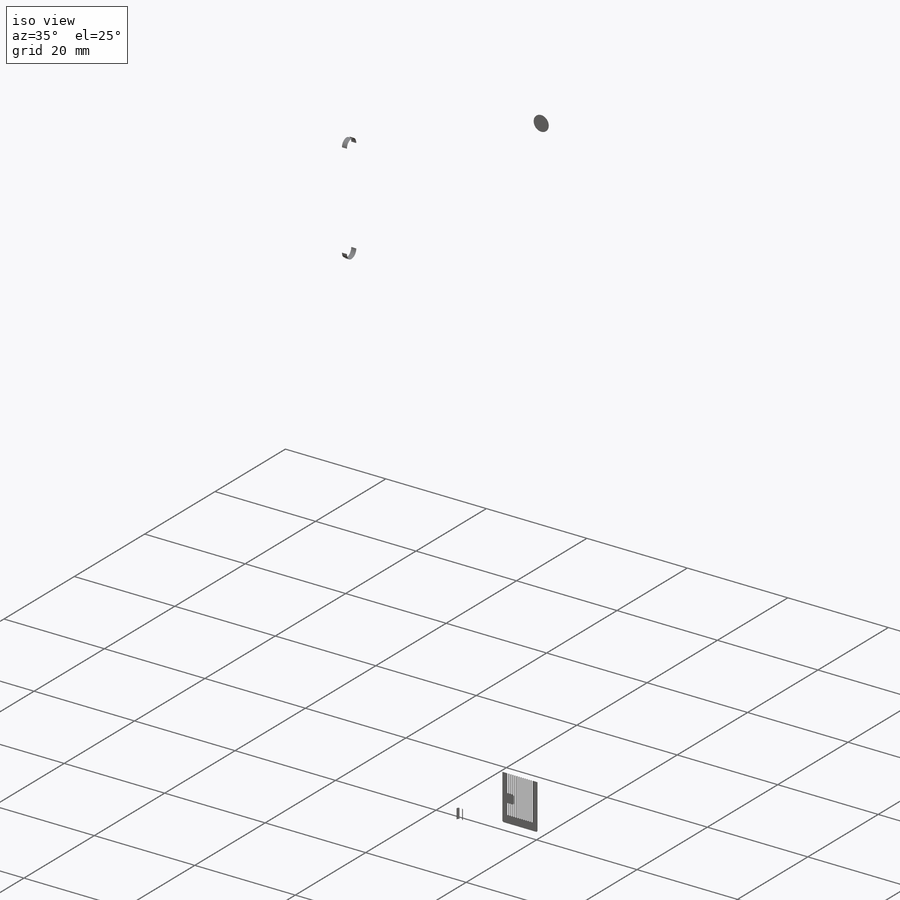
[diagram: iso view]
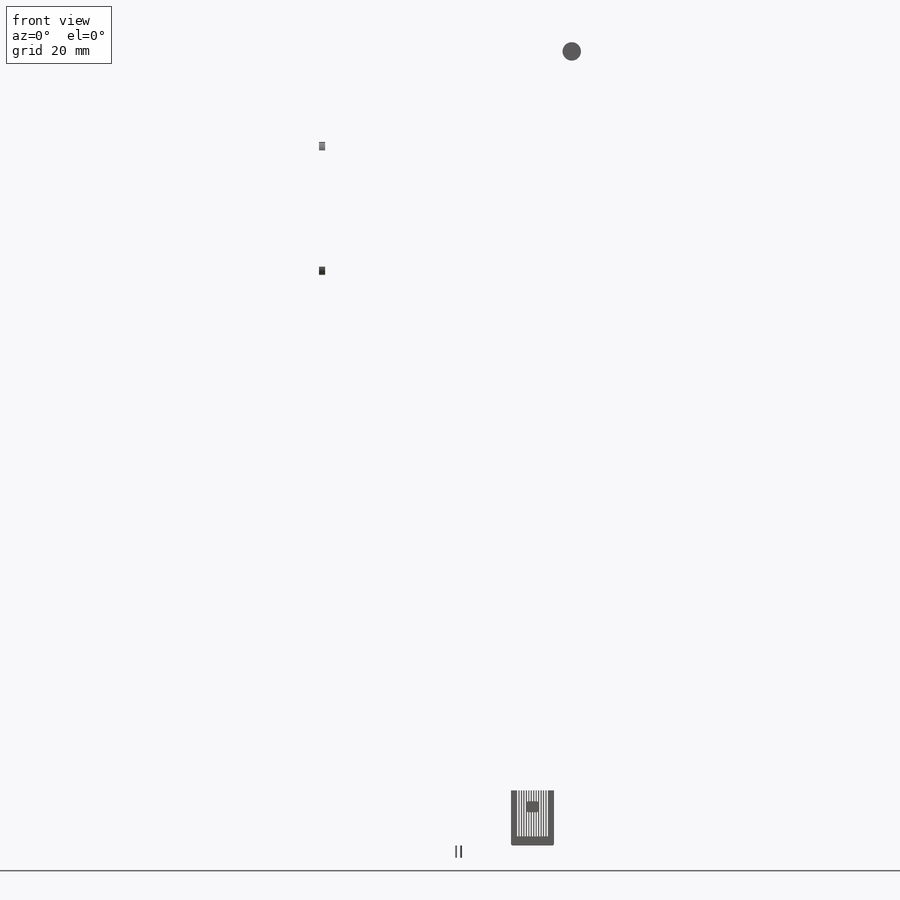
[diagram: front view]
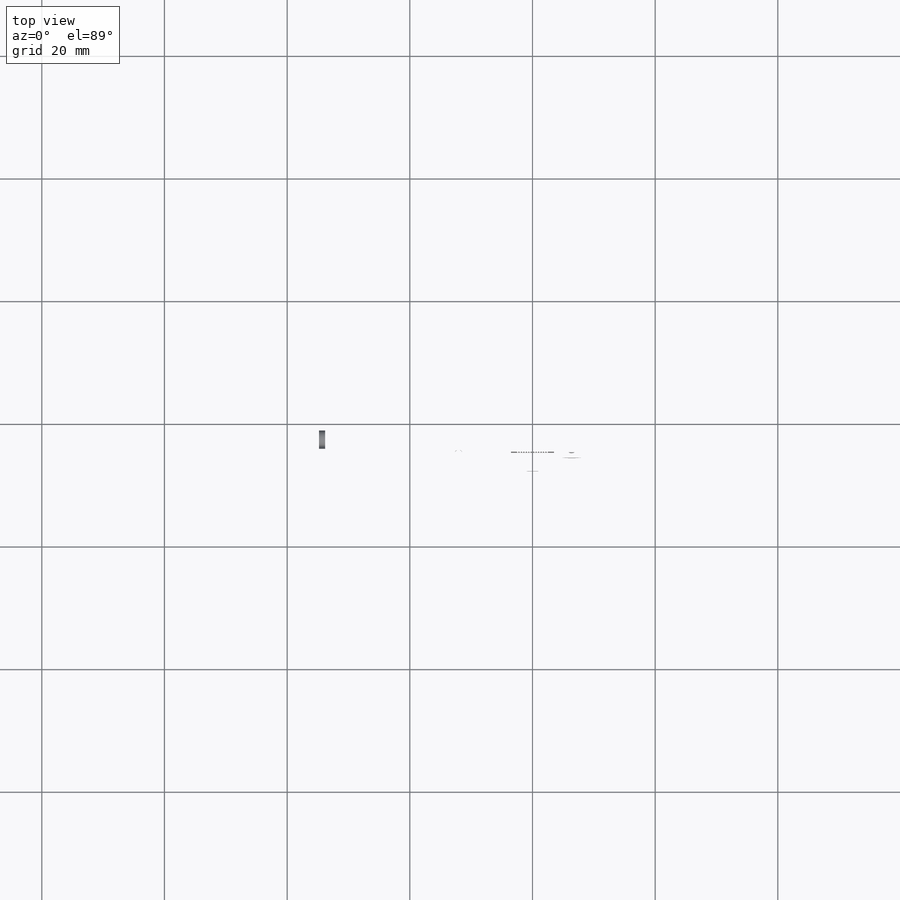
[diagram: top view]
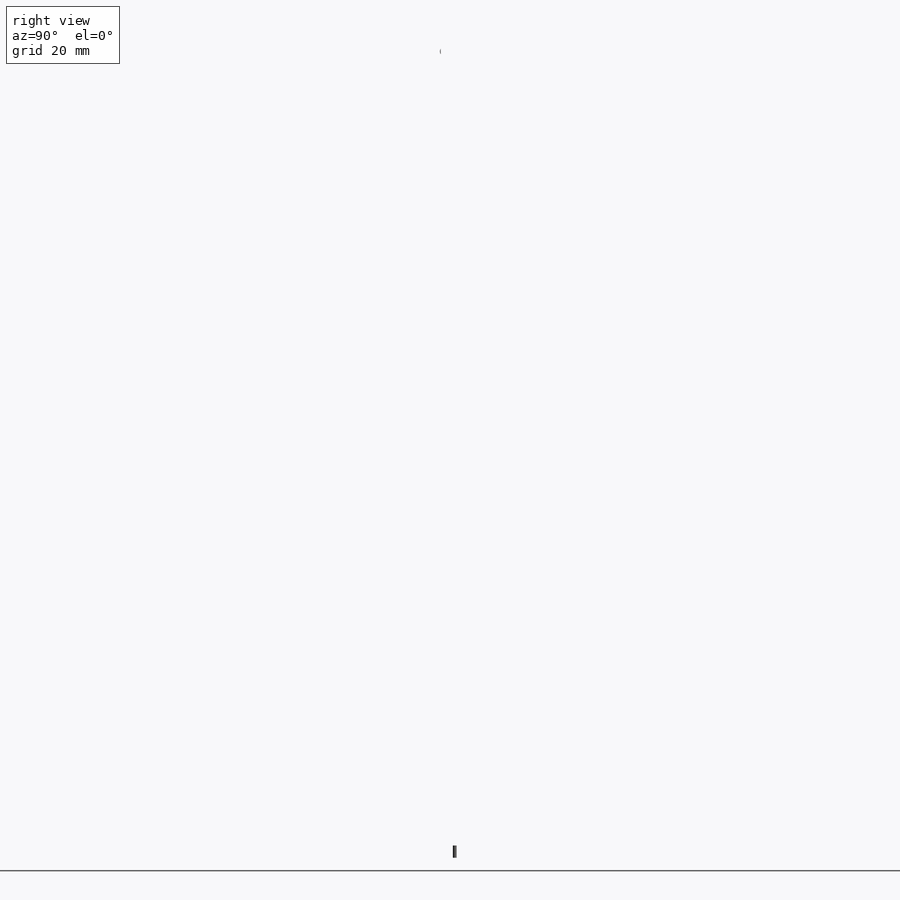
[diagram: right view]
SOLIDWORKS PART (.sldprt)
format: sldprt  version: not decoded by parser v0  size: 13,095,424 bytes
history: native  units: mm
features: sketch x36, fillet x25, cut_extrude x17, extrude x13, chamfer x6, plane x3, dome x2, material x1 (+9 scaffold rows collapsed)
feature tree (112):
  scaffold x9  (default folders/planes/origin — collapsed)
  material  "Материал <не указан>"
  plane  "Спереди"
  plane  "Сверху"
  plane  "Справа"
  sketch  "Эскиз1"  dims[D1=69.6mm D2=138.1mm]
  extrude  "Бобышка-Вытянуть1"  Depth=7.6mm
  fillet  "Скругление1"  Radius=6.5mm
  sketch  "Эскиз3"  dims[D3=6.4mm D1=0.8mm D2=0.8mm]
  cut_extrude  "Вырез-Вытянуть1"  Depth=1mm
  fillet  "Скругление2"  [1 undecoded]
  sketch  "Эскиз4"  dims[c1.D3=10.0mm c1.D1=0.01mm c1.D2=0.01mm c2.D3=~0.038331mm]
  extrude  "Бобышка-Вытянуть2"  Depth=1.2mm
  sketch  "Эскиз5"  dims[D3=10.0mm D1=0.6mm D2=0.6mm]
  cut_extrude  "Вырез-Вытянуть2"  Depth=1mm
  fillet  "Скругление3"  Radius=0.2mm
  sketch  "Эскиз6"  dims[D3=10.0mm D1=0.01mm D2=0.01mm]
  extrude  "Бобышка-Вытянуть3"  Depth=1mm
  chamfer  "Фаска1"  Distance=5.5mm
  fillet  "Скругление13"  Radius=35mm
  fillet  "Скругление14"  Radius=0.3mm
  sketch  "Эскиз9"  dims[D1=4.0mm D2=3.35mm]
  cut_extrude  "Вырез-Вытянуть3"  Depth=11.8mm
  sketch  "Эскиз10"  dims[D1=2.0mm D2=11.1mm D3=2.685mm]
  cut_extrude  "Вырез-Вытянуть4"  Depth=0.5mm
  sketch  "Эскиз11"  dims[D1=0.01mm]
  extrude  "Бобышка-Вытянуть4"  Depth=0.5mm
  fillet  "Скругление15"  Radius=0.02mm
  sketch  "Эскиз12"  dims[c1.D1=~5.498541mm c1.D2=7.0mm c2.D1=15.2mm c2.D3=6.9mm]
  cut_extrude  "Вырез-Вытянуть5"  Depth=1.5mm
  sketch  "Эскиз13"  dims[D1=0.01mm]
  extrude  "Бобышка-Вытянуть5"  Depth=1.5mm
  fillet  "Скругление17"  Radius=0.05mm
  fillet  "Скругление18"  Radius=0.06mm
  sketch  "Эскиз15"  dims[c1.D1=0.58mm c1.D2=11.4mm c1.D3=20.925mm c1.D7=27.75mm c1.D8=24.2mm c1.D9=1.5mm c2.D2=17.595mm c2.D3=17.595mm]
  cut_extrude  "Вырез-Вытянуть7"  Depth=0.2mm
  sketch  "Эскиз21"  dims[c1.D1=0.58mm c1.D4=0.58mm c1.D5=0.2995mm c2.D1=1.69mm c2.D2=2.6mm c2.D3=0.6mm c2.D4=0.095mm c2.D5=0.09mm]
  extrude  "Бобышка-Вытянуть9"  Depth=0.3mm
  fillet  "Скругление22"  Radius=0.02mm
  fillet  "Скругление23"  Radius=0.2mm
  sketch  "Эскиз22"  dims[D1=7.4mm D2=1.5mm D3=4.4mm D4=29.62mm D5=29.62mm]
  cut_extrude  "Вырез-Вытянуть8"  Depth=0.5mm
  fillet  "Скругление24"  [1 undecoded]
  fillet  "Скругление25"  [1 undecoded]
  chamfer  "Фаска2"  Distance=0.1mm Angle=45deg
  sketch  "Эскиз14"  dims[D1=0.4mm]
  cut_extrude  "Вырез-Вытянуть6"  Depth=0.2mm
  sketch  "Эскиз23"  dims[D5=0.49mm D1=1.0mm D2=2.5mm D3=0.3mm D4=0.3mm]
  sketch  "Эскиз25"  dims[c1.D4=6.18mm c1.D1=2.8mm c1.D2=6.0mm c1.D3=6.0mm c2.D1=6.0mm c2.D2=2.8mm c2.D3=3.9mm c2.D4=5.3mm c2.D5=0.01mm]
  cut_extrude  "Вырез-Вытянуть12"  Depth=0.7mm
  sketch  "Эскиз26"  dims[D1=13.0mm D2=14.0mm D3=1.9mm D4=1.9mm]
  sketch  "Эскиз27"  dims[c1.D7=0.9mm c1.D8=0.2mm c1.D5=0.9mm c1.D6=0.2mm c1.D1=2.2mm c1.D2=5.4mm c1.D3=3.2mm c1.D4=1.0mm c2.D5=0.4mm c2.D1=1.0mm c2.D6=1.0mm c2.D7=1.0mm c2.D9=0.4mm c2.D10=0.4mm c2.D11=0.4mm c2.D2=1.2mm c2.D3=0.4mm c2.D4=4.0mm c3.D7=0.4mm c3.D8=1.0mm]
  fillet  "Скругление29"  Radius=1.4mm
  fillet  "Скругление30"  Radius=0.02mm
  sketch  "Эскиз28"  dims[c1.D10=1.4mm c1.D11=0.2mm c1.D15=0.1mm c1.D1=8.0mm c1.D2=5.0mm c1.D3=29.0mm c1.D4=30.8mm c1.D5=1.2mm c1.D6=1.2mm c1.D7=5.8mm c1.D8=1.2mm c1.D9=3.8mm c1.D12=1.2mm c1.D13=1.1mm c1.D14=2.7mm c2.D15=1.2mm]
  sketch  "Эскиз29"  dims[D1=22.5mm D2=22.0mm D3=2.0mm D4=2.0mm D5=9.0mm D6=6.0mm]
  extrude  "Бобышка-Вытянуть10"  Depth=0.8mm
  fillet  "Скругление31"  [1 undecoded]
  fillet  "Скругление32"  [1 undecoded]
  fillet  "Скругление33"  [1 undecoded]
  fillet  "Скругление34"  [1 undecoded]
  fillet  "Скругление35"  Radius=0.1mm
  sketch  "Эскиз30"  dims[c1.D3=0.195mm c1.D21=0.1745mm c1.D22=0.1745mm c1.D23=0.35mm c1.D24=0.05mm c1.D15=0.205mm c1.D25=0.205mm c1.D26=0.05mm c1.D1=2.0mm c1.D2=1.8mm c2.D3=6.0mm c2.D4=13.0mm c2.D5=2.0mm c2.D6=13.0mm c2.D7=36.77mm c2.D8=2.0mm c2.D9=17.385mm c2.D10=17.385mm c2.D11=0.35mm c2.D12=0.35mm c2.D13=0.35mm c2.D14=0.4mm c3.D4=0.35mm c3.D9=1.8mm c3.D14=1.8mm c3.D7=6.0mm c3.D15=6.0mm c3.D16=6.0mm c3.D17=0.3mm c3.D18=0.3mm c3.D19=0.3mm c3.D20=0.3mm c3.D3=2.0mm c4.D4=13.0mm c4.D11=0.35mm c4.D12=0.375mm c4.D13=0.35mm c4.D16=0.35mm c5.D4=1.8mm c5.D21=2.0mm c5.D25=1.0mm c5.D26=0.5mm c5.D27=0.4mm c5.D28=0.3mm c5.D29=0.3mm c5.D30=0.3mm c5.D31=0.52mm]
  sketch  "Эскиз31"  dims[D1=2.55mm D2=21.5mm D3=21.5mm D4=2.0mm D5=0.1mm]
  cut_extrude  "Вырез-Вытянуть13"  Depth=1mm
  fillet  "Скругление36"  [1 undecoded]
  fillet  "Скругление37"  [1 undecoded]
  fillet  "Скругление38"  [1 undecoded]
  fillet  "Скругление39"  [1 undecoded]
  sketch  "Эскиз32"  dims[D1=1.2mm D2=1.275mm D3=1.3mm]
  cut_extrude  "Вырез-Вытянуть14"  Depth=2mm
  sketch  "Эскиз33"  dims[D4=0.9mm D1=9.0mm D2=2.6mm D3=1.9mm D5=30.3mm D6=30.3mm]
  cut_extrude  "Вырез-Вытянуть15"  Depth=11mm
  sketch  "Эскиз34"  dims[D1=0.05mm D2=0.1mm]
  extrude  "Бобышка-Вытянуть11"  Depth=9mm
  sketch  "Эскиз35"  dims[D1=0.6mm D2=7.0mm D3=0.1mm D4=0.1mm D5=0.1mm]
  extrude  "Бобышка-Вытянуть12"  Depth=9mm
  chamfer  "Фаска4"  Distance=0.05mm Angle=45deg
  chamfer  "Фаска5"  Distance=0.2mm Angle=45deg
  sketch  "Эскиз36"  dims[D1=7.5mm D2=0.2mm D4=5.0mm D5=1.0mm D3=13.0]
  sketch  "Эскиз37"  dims[D1=13.0]
  extrude  "Бобышка-Вытянуть13"  Depth=0.02mm
  extrude  "Бобышка-Вытянуть14"  Depth=0.02mm
  sketch  "Эскиз38"  dims[c1.D1=1.1mm c1.D2=0.6mm c1.D3=7.0mm c1.D4=0.8mm c2.D3=0.8mm c2.D4=7.0mm]
  cut_extrude  "Вырез-Вытянуть16"  Depth=2mm
  fillet  "Скругление42"  [1 undecoded]
  fillet  "Скругление43"  [1 undecoded]
  sketch  "Эскиз24"  dims[D1=1.2mm D2=2.6mm]
  cut_extrude  "Вырез-Вытянуть17"  Depth=0.925mm
  chamfer  "Фаска6"  Distance=0.9mm Angle=45deg
  sketch  "Эскиз39"  dims[D1=1.0mm]
  dome  "Купол1"
  sketch  "Эскиз40"
  extrude  "Бобышка-Вытянуть15"  Depth=0.0001mm
  sketch  "Эскиз41"
  cut_extrude  "Вырез-Вытянуть18"  Depth=0.3mm
  sketch  "Эскиз43"  dims[D1=4.0mm]
  cut_extrude  "Вырез-Вытянуть19"  Depth=0.4mm
  sketch  "Эскиз44"  dims[D1=2.0mm]
  cut_extrude  "Вырез-Вытянуть20"  Depth=0.3mm
  chamfer  "Фаска7"  Distance=0.3mm Angle=45deg
  dome  "Купол2"
  sketch  "Эскиз45"
  extrude  "Бобышка-Вытянуть17"  Depth=0.1mm
decode coverage: 81 of 99 modeling features carry decoded parameters
note: ~ marks probable driven/reference dimensions
note: 13 parameter values undecoded
summary: no parameter record found for 13 features
note: suppression state not decoded; provenance and decode notes live in map.json
